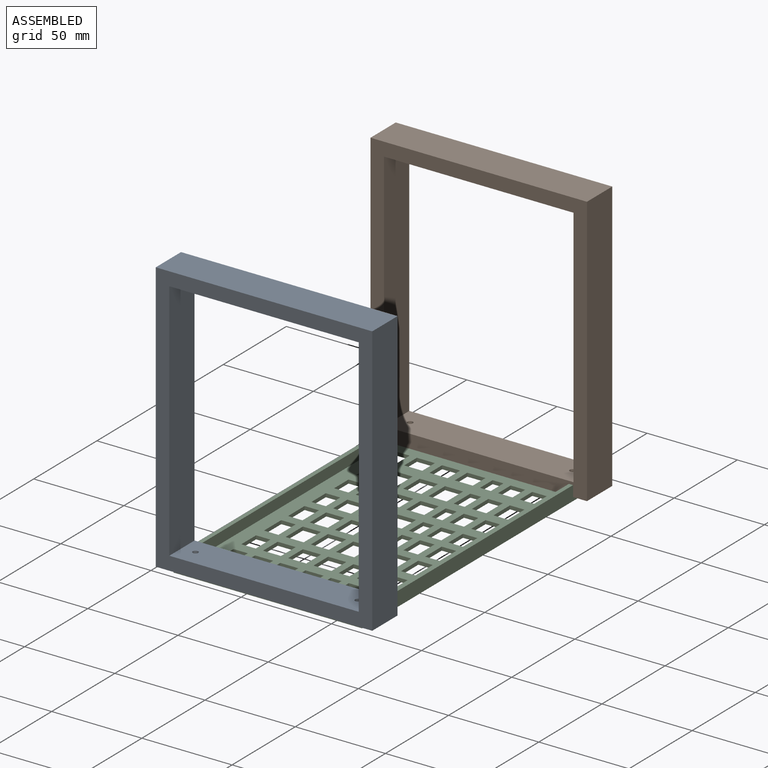
[diagram: assembled view]
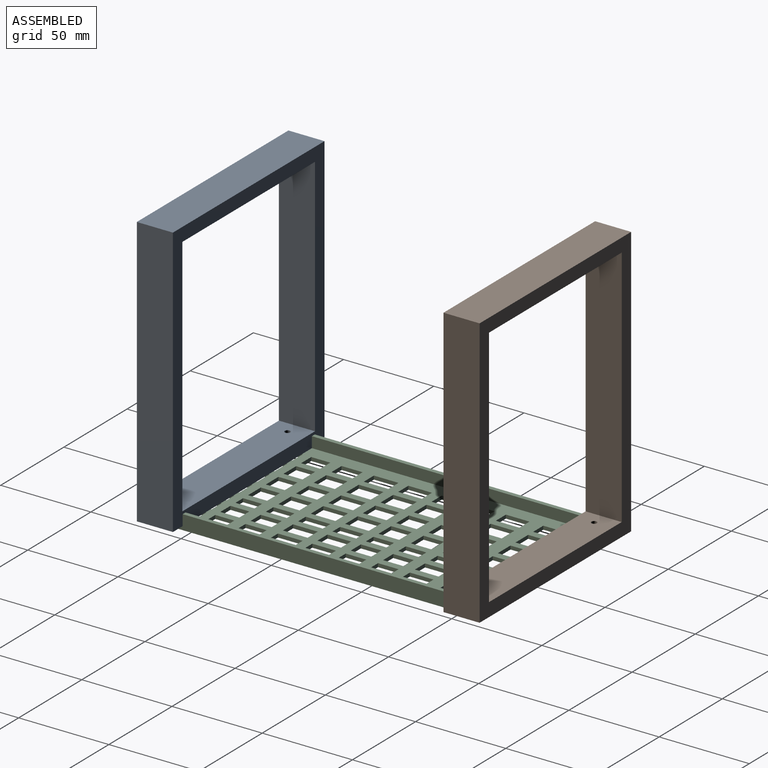
[diagram: assembled view, second angle]
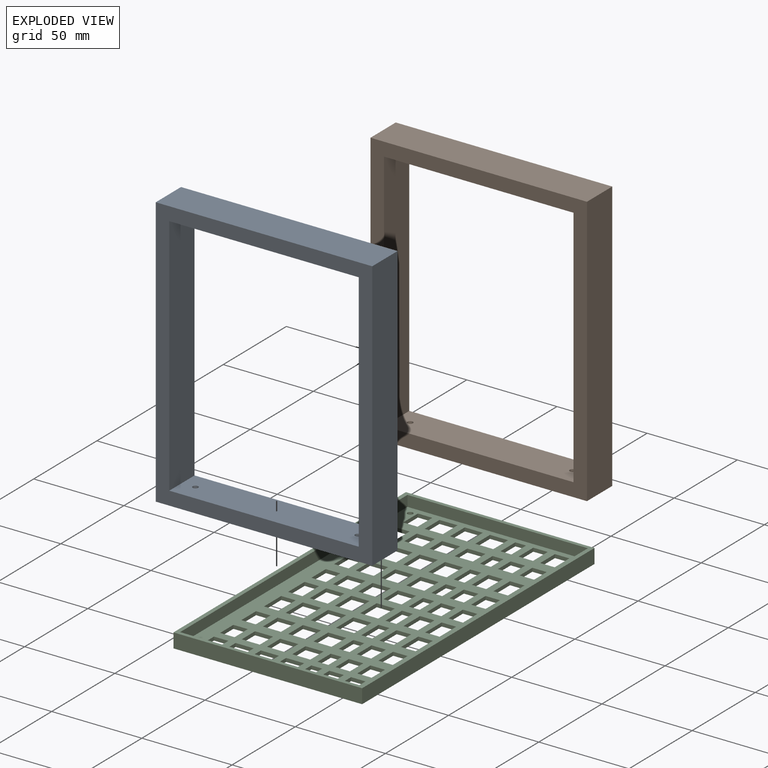
[diagram: exploded view]
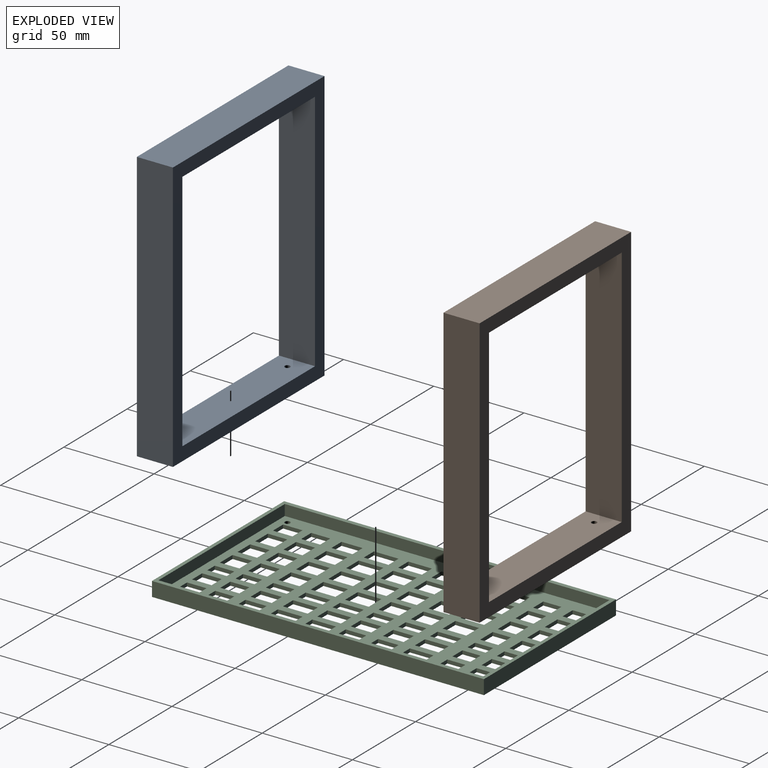
[diagram: exploded view, second angle]
ASSEMBLY  parts=3 mates=2
PART A: 12 faces, bbox 120x150x20 mm
  f0: plane 120x20mm, normal (0,1,0), area 2400mm2, adj f1,f7,f8,f9
  f1: plane 150x20mm, normal (-1,0,0), area 3000mm2, adj f0,f2,f8,f9
  f2: plane 120x20mm, normal (0,-1,0), area 2385.9mm2, adj f1,f7,f8,f9,f10,f11
  f3: plane 135x20mm, normal (1,0,0), area 2700mm2, adj f4,f6,f8,f9
  f4: plane 105x20mm, normal (0,-1,0), area 2100mm2, adj f3,f5,f8,f9
  f5: plane 135x20mm, normal (-1,0,0), area 2700mm2, adj f4,f6,f8,f9
  f6: plane 105x20mm, normal (0,1,0), area 2085.9mm2, adj f3,f5,f8,f9,f10,f11
  f7: plane 150x20mm, normal (1,0,0), area 3000mm2, adj f0,f2,f8,f9
  f8: plane 150x120mm, normal (0,0,1), area 3825mm2, adj f0,f1,f2,f3,f4,f5,f6,f7
  f9: plane 150x120mm, normal (0,0,-1), area 3825mm2, adj f0,f1,f2,f3,f4,f5,f6,f7
  f10: cylinder r=1.5mm len=7.5mm, axis (0,1,0), area 70.7mm2, adj f2,f6
  f11: cylinder r=1.5mm len=7.5mm, axis (0,1,0), area 70.7mm2, adj f2,f6
PART B: same geometry as A
PART C: 308 faces, bbox 184x104.6x8 mm
  f0: plane 100x8mm, normal (-1,0,0), area 668mm2, adj f5,f6,f8,f9,f220,f221,f223,f224
  f1: plane 184x8mm, normal (0,1,0), area 1472mm2, adj f2,f7,f8,f9
  f2: plane 104.6x8mm, normal (-1,0,0), area 836.8mm2, adj f1,f3,f8,f9
  f3: plane 184x8mm, normal (0,-1,0), area 1472mm2, adj f2,f7,f8,f9
  f4: plane 100x8mm, normal (1,0,0), area 600mm2, adj f5,f6,f8,f9,f220,f303
  f5: plane 180x8mm, normal (0,-1,0), area 1440mm2, adj f0,f4,f8,f9
  f6: plane 180x6mm, normal (0,1,0), area 1080mm2, adj f0,f4,f8,f303
  f7: plane 104.6x8mm, normal (1,0,0), area 836.8mm2, adj f1,f3,f8,f9
  f8: plane 184x104.6mm, normal (0,0,1), area 1246.3mm2, adj f0,f1,f2,f3,f4,f5,f6,f7
  f9: plane 184x104.6mm, normal (0,0,-1), area 12174.1mm2, adj f0,f1,f2,f3,f4,f5,f7,f10
  f10: plane 8x2mm, normal (1,0,0), area 16mm2, adj f9,f11,f302,f303
  f11: plane 13.09x2mm, normal (0,-1,0), area 26.2mm2, adj f9,f10,f12,f303
  f12: plane 8x2mm, normal (-1,0,0), area 16mm2, adj f9,f11,f302,f303
  f13: plane 8x2mm, normal (1,0,0), area 16mm2, adj f9,f14,f233,f303
  f14: plane 10x2mm, normal (0,-1,0), area 20mm2, adj f9,f13,f15,f303
  f15: plane 8x2mm, normal (-1,0,0), area 16mm2, adj f9,f14,f233,f303
  f16: plane 8x2mm, normal (1,0,0), area 16mm2, adj f9,f17,f234,f303
  f17: plane 10.53x2mm, normal (0,-1,0), area 21.1mm2, adj f9,f16,f18,f303
  f18: plane 8x2mm, normal (-1,0,0), area 16mm2, adj f9,f17,f234,f303
  f19: plane 8x2mm, normal (1,0,0), area 16mm2, adj f9,f20,f235,f303
  f20: plane 10.82x2mm, normal (0,-1,0), area 21.6mm2, adj f9,f19,f21,f303
  f21: plane 8x2mm, normal (-1,0,0), area 16mm2, adj f9,f20,f235,f303
  f22: plane 8x2mm, normal (1,0,0), area 16mm2, adj f9,f23,f236,f303
  f23: plane 11.39x2mm, normal (0,-1,0), area 22.8mm2, adj f9,f22,f24,f303
  f24: plane 8x2mm, normal (-1,0,0), area 16mm2, adj f9,f23,f236,f303
  f25: plane 8x2mm, normal (1,0,0), area 16mm2, adj f9,f26,f237,f303
  f26: plane 11.39x2mm, normal (0,-1,0), area 22.8mm2, adj f9,f25,f27,f303
  f27: plane 8x2mm, normal (-1,0,0), area 16mm2, adj f9,f26,f237,f303
  f28: plane 8x2mm, normal (1,0,0), area 16mm2, adj f9,f29,f238,f303
  f29: plane 11.67x2mm, normal (0,-1,0), area 23.3mm2, adj f9,f28,f30,f303
  f30: plane 8x2mm, normal (-1,0,0), area 16mm2, adj f9,f29,f238,f303
  f31: plane 8x2mm, normal (1,0,0), area 16mm2, adj f9,f32,f239,f303
  f32: plane 13.09x2mm, normal (0,-1,0), area 26.2mm2, adj f9,f31,f33,f303
  f33: plane 8x2mm, normal (-1,0,0), area 16mm2, adj f9,f32,f239,f303
  f34: plane 8x2mm, normal (1,0,0), area 16mm2, adj f9,f35,f240,f303
  f35: plane 13.66x2mm, normal (0,-1,0), area 27.3mm2, adj f9,f34,f36,f303
  f36: plane 8x2mm, normal (-1,0,0), area 16mm2, adj f9,f35,f240,f303
  f37: plane 8x2mm, normal (1,0,0), area 16mm2, adj f9,f38,f241,f303
  f38: plane 11.67x2mm, normal (0,-1,0), area 23.3mm2, adj f9,f37,f39,f303
  f39: plane 8x2mm, normal (-1,0,0), area 16mm2, adj f9,f38,f241,f303
  f40: plane 10x2mm, normal (1,0,0), area 20mm2, adj f9,f41,f242,f303
  f41: plane 13.09x2mm, normal (0,-1,0), area 26.2mm2, adj f9,f40,f42,f303
  f42: plane 10x2mm, normal (-1,0,0), area 20mm2, adj f9,f41,f242,f303
  f43: plane 10x2mm, normal (1,0,0), area 20mm2, adj f9,f44,f243,f303
  f44: plane 10x2mm, normal (0,-1,0), area 20mm2, adj f9,f43,f45,f303
  f45: plane 10x2mm, normal (-1,0,0), area 20mm2, adj f9,f44,f243,f303
  f46: plane 10x2mm, normal (1,0,0), area 20mm2, adj f9,f47,f244,f303
  f47: plane 10.53x2mm, normal (0,-1,0), area 21.1mm2, adj f9,f46,f48,f303
  f48: plane 10x2mm, normal (-1,0,0), area 20mm2, adj f9,f47,f244,f303
  f49: plane 10x2mm, normal (1,0,0), area 20mm2, adj f9,f50,f245,f303
  f50: plane 10.82x2mm, normal (0,-1,0), area 21.6mm2, adj f9,f49,f51,f303
  f51: plane 10x2mm, normal (-1,0,0), area 20mm2, adj f9,f50,f245,f303
  f52: plane 10x2mm, normal (1,0,0), area 20mm2, adj f9,f53,f246,f303
  f53: plane 11.39x2mm, normal (0,-1,0), area 22.8mm2, adj f9,f52,f54,f303
  f54: plane 10x2mm, normal (-1,0,0), area 20mm2, adj f9,f53,f246,f303
  f55: plane 10x2mm, normal (1,0,0), area 20mm2, adj f9,f56,f247,f303
  f56: plane 11.39x2mm, normal (0,-1,0), area 22.8mm2, adj f9,f55,f57,f303
  f57: plane 10x2mm, normal (-1,0,0), area 20mm2, adj f9,f56,f247,f303
  f58: plane 10x2mm, normal (1,0,0), area 20mm2, adj f9,f59,f248,f303
  f59: plane 11.67x2mm, normal (0,-1,0), area 23.3mm2, adj f9,f58,f60,f303
  f60: plane 10x2mm, normal (-1,0,0), area 20mm2, adj f9,f59,f248,f303
  f61: plane 10x2mm, normal (1,0,0), area 20mm2, adj f9,f62,f249,f303
  f62: plane 13.09x2mm, normal (0,-1,0), area 26.2mm2, adj f9,f61,f63,f303
  f63: plane 10x2mm, normal (-1,0,0), area 20mm2, adj f9,f62,f249,f303
  f64: plane 10x2mm, normal (1,0,0), area 20mm2, adj f9,f65,f250,f303
  f65: plane 13.66x2mm, normal (0,-1,0), area 27.3mm2, adj f9,f64,f66,f303
  f66: plane 10x2mm, normal (-1,0,0), area 20mm2, adj f9,f65,f250,f303
  f67: plane 10x2mm, normal (1,0,0), area 20mm2, adj f9,f68,f251,f303
  f68: plane 11.67x2mm, normal (0,-1,0), area 23.3mm2, adj f9,f67,f69,f303
  f69: plane 10x2mm, normal (-1,0,0), area 20mm2, adj f9,f68,f251,f303
  f70: plane 10x2mm, normal (1,0,0), area 20mm2, adj f9,f71,f252,f303
  f71: plane 13.09x2mm, normal (0,-1,0), area 26.2mm2, adj f9,f70,f72,f303
  f72: plane 10x2mm, normal (-1,0,0), area 20mm2, adj f9,f71,f252,f303
  f73: plane 10x2mm, normal (1,0,0), area 20mm2, adj f9,f74,f253,f303
  f74: plane 10x2mm, normal (0,-1,0), area 20mm2, adj f9,f73,f75,f303
  f75: plane 10x2mm, normal (-1,0,0), area 20mm2, adj f9,f74,f253,f303
  f76: plane 10x2mm, normal (1,0,0), area 20mm2, adj f9,f77,f254,f303
  f77: plane 10.53x2mm, normal (0,-1,0), area 21.1mm2, adj f9,f76,f78,f303
  f78: plane 10x2mm, normal (-1,0,0), area 20mm2, adj f9,f77,f254,f303
  f79: plane 10x2mm, normal (1,0,0), area 20mm2, adj f9,f80,f255,f303
  f80: plane 10.82x2mm, normal (0,-1,0), area 21.6mm2, adj f9,f79,f81,f303
  f81: plane 10x2mm, normal (-1,0,0), area 20mm2, adj f9,f80,f255,f303
  f82: plane 10x2mm, normal (1,0,0), area 20mm2, adj f9,f83,f256,f303
  f83: plane 11.39x2mm, normal (0,-1,0), area 22.8mm2, adj f9,f82,f84,f303
  f84: plane 10x2mm, normal (-1,0,0), area 20mm2, adj f9,f83,f256,f303
  f85: plane 10x2mm, normal (1,0,0), area 20mm2, adj f9,f86,f257,f303
  f86: plane 11.39x2mm, normal (0,-1,0), area 22.8mm2, adj f9,f85,f87,f303
  f87: plane 10x2mm, normal (-1,0,0), area 20mm2, adj f9,f86,f257,f303
  f88: plane 10x2mm, normal (1,0,0), area 20mm2, adj f9,f89,f258,f303
  f89: plane 11.67x2mm, normal (0,-1,0), area 23.3mm2, adj f9,f88,f90,f303
  f90: plane 10x2mm, normal (-1,0,0), area 20mm2, adj f9,f89,f258,f303
  f91: plane 10x2mm, normal (1,0,0), area 20mm2, adj f9,f92,f259,f303
  f92: plane 13.09x2mm, normal (0,-1,0), area 26.2mm2, adj f9,f91,f93,f303
  f93: plane 10x2mm, normal (-1,0,0), area 20mm2, adj f9,f92,f259,f303
  f94: plane 10x2mm, normal (1,0,0), area 20mm2, adj f9,f95,f260,f303
  f95: plane 13.66x2mm, normal (0,-1,0), area 27.3mm2, adj f9,f94,f96,f303
  f96: plane 10x2mm, normal (-1,0,0), area 20mm2, adj f9,f95,f260,f303
  f97: plane 10x2mm, normal (1,0,0), area 20mm2, adj f9,f98,f261,f303
  f98: plane 11.67x2mm, normal (0,-1,0), area 23.3mm2, adj f9,f97,f99,f303
  f99: plane 10x2mm, normal (-1,0,0), area 20mm2, adj f9,f98,f261,f303
  f100: plane 10x2mm, normal (1,0,0), area 20mm2, adj f9,f101,f262,f303
  f101: plane 13.09x2mm, normal (0,-1,0), area 26.2mm2, adj f9,f100,f102,f303
  f102: plane 10x2mm, normal (-1,0,0), area 20mm2, adj f9,f101,f262,f303
  f103: plane 10x2mm, normal (1,0,0), area 20mm2, adj f9,f104,f263,f303
  f104: plane 10x2mm, normal (0,-1,0), area 20mm2, adj f9,f103,f105,f303
  f105: plane 10x2mm, normal (-1,0,0), area 20mm2, adj f9,f104,f263,f303
  f106: plane 10x2mm, normal (1,0,0), area 20mm2, adj f9,f107,f264,f303
  f107: plane 10.53x2mm, normal (0,-1,0), area 21.1mm2, adj f9,f106,f108,f303
  f108: plane 10x2mm, normal (-1,0,0), area 20mm2, adj f9,f107,f264,f303
  f109: plane 10x2mm, normal (1,0,0), area 20mm2, adj f9,f110,f265,f303
  f110: plane 10.82x2mm, normal (0,-1,0), area 21.6mm2, adj f9,f109,f111,f303
  f111: plane 10x2mm, normal (-1,0,0), area 20mm2, adj f9,f110,f265,f303
  f112: plane 10x2mm, normal (1,0,0), area 20mm2, adj f9,f113,f266,f303
  f113: plane 11.39x2mm, normal (0,-1,0), area 22.8mm2, adj f9,f112,f114,f303
  f114: plane 10x2mm, normal (-1,0,0), area 20mm2, adj f9,f113,f266,f303
  f115: plane 10x2mm, normal (1,0,0), area 20mm2, adj f9,f116,f267,f303
  f116: plane 11.39x2mm, normal (0,-1,0), area 22.8mm2, adj f9,f115,f117,f303
  f117: plane 10x2mm, normal (-1,0,0), area 20mm2, adj f9,f116,f267,f303
  f118: plane 10x2mm, normal (1,0,0), area 20mm2, adj f9,f119,f268,f303
  f119: plane 11.67x2mm, normal (0,-1,0), area 23.3mm2, adj f9,f118,f120,f303
  f120: plane 10x2mm, normal (-1,0,0), area 20mm2, adj f9,f119,f268,f303
  f121: plane 10x2mm, normal (1,0,0), area 20mm2, adj f9,f122,f269,f303
  f122: plane 13.09x2mm, normal (0,-1,0), area 26.2mm2, adj f9,f121,f123,f303
  f123: plane 10x2mm, normal (-1,0,0), area 20mm2, adj f9,f122,f269,f303
  f124: plane 10x2mm, normal (1,0,0), area 20mm2, adj f9,f125,f270,f303
  f125: plane 13.66x2mm, normal (0,-1,0), area 27.3mm2, adj f9,f124,f126,f303
  f126: plane 10x2mm, normal (-1,0,0), area 20mm2, adj f9,f125,f270,f303
  f127: plane 10x2mm, normal (1,0,0), area 20mm2, adj f9,f128,f271,f303
  f128: plane 11.67x2mm, normal (0,-1,0), area 23.3mm2, adj f9,f127,f129,f303
  f129: plane 10x2mm, normal (-1,0,0), area 20mm2, adj f9,f128,f271,f303
  f130: plane 6x2mm, normal (1,0,0), area 12mm2, adj f9,f131,f272,f303
  f131: plane 13.09x2mm, normal (0,-1,0), area 26.2mm2, adj f9,f130,f132,f303
  f132: plane 6x2mm, normal (-1,0,0), area 12mm2, adj f9,f131,f272,f303
  f133: plane 6x2mm, normal (1,0,0), area 12mm2, adj f9,f134,f273,f303
  f134: plane 10x2mm, normal (0,-1,0), area 20mm2, adj f9,f133,f135,f303
  f135: plane 6x2mm, normal (-1,0,0), area 12mm2, adj f9,f134,f273,f303
  f136: plane 6x2mm, normal (1,0,0), area 12mm2, adj f9,f137,f274,f303
  f137: plane 10.53x2mm, normal (0,-1,0), area 21.1mm2, adj f9,f136,f138,f303
  f138: plane 6x2mm, normal (-1,0,0), area 12mm2, adj f9,f137,f274,f303
  f139: plane 6x2mm, normal (1,0,0), area 12mm2, adj f9,f140,f275,f303
  f140: plane 10.82x2mm, normal (0,-1,0), area 21.6mm2, adj f9,f139,f141,f303
  f141: plane 6x2mm, normal (-1,0,0), area 12mm2, adj f9,f140,f275,f303
  f142: plane 6x2mm, normal (1,0,0), area 12mm2, adj f9,f143,f276,f303
  f143: plane 11.39x2mm, normal (0,-1,0), area 22.8mm2, adj f9,f142,f144,f303
  f144: plane 6x2mm, normal (-1,0,0), area 12mm2, adj f9,f143,f276,f303
  f145: plane 6x2mm, normal (1,0,0), area 12mm2, adj f9,f146,f277,f303
  f146: plane 11.39x2mm, normal (0,-1,0), area 22.8mm2, adj f9,f145,f147,f303
  f147: plane 6x2mm, normal (-1,0,0), area 12mm2, adj f9,f146,f277,f303
  f148: plane 6x2mm, normal (1,0,0), area 12mm2, adj f9,f149,f278,f303
  f149: plane 11.67x2mm, normal (0,-1,0), area 23.3mm2, adj f9,f148,f150,f303
  f150: plane 6x2mm, normal (-1,0,0), area 12mm2, adj f9,f149,f278,f303
  f151: plane 6x2mm, normal (1,0,0), area 12mm2, adj f9,f152,f279,f303
  f152: plane 13.09x2mm, normal (0,-1,0), area 26.2mm2, adj f9,f151,f153,f303
  f153: plane 6x2mm, normal (-1,0,0), area 12mm2, adj f9,f152,f279,f303
  f154: plane 6x2mm, normal (1,0,0), area 12mm2, adj f9,f155,f280,f303
  f155: plane 13.66x2mm, normal (0,-1,0), area 27.3mm2, adj f9,f154,f156,f303
  f156: plane 6x2mm, normal (-1,0,0), area 12mm2, adj f9,f155,f280,f303
  f157: plane 6x2mm, normal (1,0,0), area 12mm2, adj f9,f158,f281,f303
  f158: plane 11.67x2mm, normal (0,-1,0), area 23.3mm2, adj f9,f157,f159,f303
  f159: plane 6x2mm, normal (-1,0,0), area 12mm2, adj f9,f158,f281,f303
  f160: plane 8x2mm, normal (1,0,0), area 16mm2, adj f9,f161,f282,f303
  f161: plane 13.09x2mm, normal (0,-1,0), area 26.2mm2, adj f9,f160,f162,f303
  f162: plane 8x2mm, normal (-1,0,0), area 16mm2, adj f9,f161,f282,f303
  f163: plane 8x2mm, normal (1,0,0), area 16mm2, adj f9,f164,f283,f303
  f164: plane 10x2mm, normal (0,-1,0), area 20mm2, adj f9,f163,f165,f303
  f165: plane 8x2mm, normal (-1,0,0), area 16mm2, adj f9,f164,f283,f303
  f166: plane 8x2mm, normal (1,0,0), area 16mm2, adj f9,f167,f284,f303
  f167: plane 10.53x2mm, normal (0,-1,0), area 21.1mm2, adj f9,f166,f168,f303
  f168: plane 8x2mm, normal (-1,0,0), area 16mm2, adj f9,f167,f284,f303
  f169: plane 8x2mm, normal (1,0,0), area 16mm2, adj f9,f170,f285,f303
  f170: plane 10.82x2mm, normal (0,-1,0), area 21.6mm2, adj f9,f169,f171,f303
  f171: plane 8x2mm, normal (-1,0,0), area 16mm2, adj f9,f170,f285,f303
  f172: plane 8x2mm, normal (1,0,0), area 16mm2, adj f9,f173,f286,f303
  f173: plane 11.39x2mm, normal (0,-1,0), area 22.8mm2, adj f9,f172,f174,f303
  f174: plane 8x2mm, normal (-1,0,0), area 16mm2, adj f9,f173,f286,f303
  f175: plane 8x2mm, normal (1,0,0), area 16mm2, adj f9,f176,f287,f303
  f176: plane 11.39x2mm, normal (0,-1,0), area 22.8mm2, adj f9,f175,f177,f303
  f177: plane 8x2mm, normal (-1,0,0), area 16mm2, adj f9,f176,f287,f303
  f178: plane 8x2mm, normal (1,0,0), area 16mm2, adj f9,f179,f288,f303
  f179: plane 11.67x2mm, normal (0,-1,0), area 23.3mm2, adj f9,f178,f180,f303
  f180: plane 8x2mm, normal (-1,0,0), area 16mm2, adj f9,f179,f288,f303
  f181: plane 8x2mm, normal (1,0,0), area 16mm2, adj f9,f182,f289,f303
  f182: plane 13.09x2mm, normal (0,-1,0), area 26.2mm2, adj f9,f181,f183,f303
  f183: plane 8x2mm, normal (-1,0,0), area 16mm2, adj f9,f182,f289,f303
  f184: plane 8x2mm, normal (1,0,0), area 16mm2, adj f9,f185,f290,f303
  f185: plane 13.66x2mm, normal (0,-1,0), area 27.3mm2, adj f9,f184,f186,f303
  f186: plane 8x2mm, normal (-1,0,0), area 16mm2, adj f9,f185,f290,f303
  f187: plane 8x2mm, normal (1,0,0), area 16mm2, adj f9,f188,f291,f303
  f188: plane 11.67x2mm, normal (0,-1,0), area 23.3mm2, adj f9,f187,f189,f303
  f189: plane 8x2mm, normal (-1,0,0), area 16mm2, adj f9,f188,f291,f303
  f190: plane 8x2mm, normal (1,0,0), area 16mm2, adj f9,f191,f292,f303
  f191: plane 13.09x2mm, normal (0,-1,0), area 26.2mm2, adj f9,f190,f192,f303
  f192: plane 8x2mm, normal (-1,0,0), area 16mm2, adj f9,f191,f292,f303
  f193: plane 8x2mm, normal (1,0,0), area 16mm2, adj f9,f194,f293,f303
  f194: plane 10x2mm, normal (0,-1,0), area 20mm2, adj f9,f193,f195,f303
  f195: plane 8x2mm, normal (-1,0,0), area 16mm2, adj f9,f194,f293,f303
  f196: plane 8x2mm, normal (1,0,0), area 16mm2, adj f9,f197,f294,f303
  f197: plane 10.53x2mm, normal (0,-1,0), area 21.1mm2, adj f9,f196,f198,f303
  f198: plane 8x2mm, normal (-1,0,0), area 16mm2, adj f9,f197,f294,f303
  f199: plane 8x2mm, normal (1,0,0), area 16mm2, adj f9,f200,f295,f303
  f200: plane 10.82x2mm, normal (0,-1,0), area 21.6mm2, adj f9,f199,f201,f303
  f201: plane 8x2mm, normal (-1,0,0), area 16mm2, adj f9,f200,f295,f303
  f202: plane 8x2mm, normal (1,0,0), area 16mm2, adj f9,f203,f296,f303
  f203: plane 11.39x2mm, normal (0,-1,0), area 22.8mm2, adj f9,f202,f204,f303
  f204: plane 8x2mm, normal (-1,0,0), area 16mm2, adj f9,f203,f296,f303
  f205: plane 8x2mm, normal (1,0,0), area 16mm2, adj f9,f206,f297,f303
  f206: plane 11.39x2mm, normal (0,-1,0), area 22.8mm2, adj f9,f205,f207,f303
  f207: plane 8x2mm, normal (-1,0,0), area 16mm2, adj f9,f206,f297,f303
  f208: plane 8x2mm, normal (1,0,0), area 16mm2, adj f9,f209,f298,f303
  f209: plane 11.67x2mm, normal (0,-1,0), area 23.3mm2, adj f9,f208,f210,f303
  f210: plane 8x2mm, normal (-1,0,0), area 16mm2, adj f9,f209,f298,f303
  f211: plane 8x2mm, normal (1,0,0), area 16mm2, adj f9,f212,f299,f303
  f212: plane 11.67x2mm, normal (0,-1,0), area 23.3mm2, adj f9,f211,f213,f303
  f213: plane 8x2mm, normal (-1,0,0), area 16mm2, adj f9,f212,f299,f303
  f214: plane 8x2mm, normal (1,0,0), area 16mm2, adj f9,f215,f300,f303
  f215: plane 13.09x2mm, normal (0,-1,0), area 26.2mm2, adj f9,f214,f216,f303
  f216: plane 8x2mm, normal (-1,0,0), area 16mm2, adj f9,f215,f300,f303
  f217: plane 8x2mm, normal (1,0,0), area 16mm2, adj f9,f218,f301,f303
  f218: plane 13.66x2mm, normal (0,-1,0), area 27.3mm2, adj f9,f217,f219,f303
  f219: plane 8x2mm, normal (-1,0,0), area 16mm2, adj f9,f218,f301,f303
  f220: plane 180x2mm, normal (0,1,0), area 360mm2, adj f0,f4,f9,f303
  f221: plane 2x0.05mm, normal (0,1,0), area 0.1mm2, adj f0,f9,f222,f303
  f222: plane 10x2mm, normal (1,0,0), area 20mm2, adj f9,f221,f223,f303
  f223: plane 2x0.05mm, normal (0,-1,0), area 0.1mm2, adj f0,f9,f222,f303
  f224: plane 2x0.05mm, normal (0,1,0), area 0.1mm2, adj f0,f9,f225,f303
  f225: plane 10x2mm, normal (1,0,0), area 20mm2, adj f9,f224,f226,f303
  f226: plane 2x0.05mm, normal (0,-1,0), area 0.1mm2, adj f0,f9,f225,f303
  f227: plane 2x0.05mm, normal (0,1,0), area 0.1mm2, adj f0,f9,f228,f303
  f228: plane 6x2mm, normal (1,0,0), area 12mm2, adj f9,f227,f229,f303
  f229: plane 2x0.05mm, normal (0,-1,0), area 0.1mm2, adj f0,f9,f228,f303
  f230: plane 2x0.05mm, normal (0,1,0), area 0.1mm2, adj f0,f9,f231,f303
  f231: plane 8x2mm, normal (1,0,0), area 16mm2, adj f9,f230,f232,f303
  f232: plane 2x0.05mm, normal (0,-1,0), area 0.1mm2, adj f0,f9,f231,f303
  f233: plane 10x2mm, normal (0,1,0), area 20mm2, adj f9,f13,f15,f303
  f234: plane 10.53x2mm, normal (0,1,0), area 21.1mm2, adj f9,f16,f18,f303
  f235: plane 10.82x2mm, normal (0,1,0), area 21.6mm2, adj f9,f19,f21,f303
  f236: plane 11.39x2mm, normal (0,1,0), area 22.8mm2, adj f9,f22,f24,f303
  f237: plane 11.39x2mm, normal (0,1,0), area 22.8mm2, adj f9,f25,f27,f303
  f238: plane 11.67x2mm, normal (0,1,0), area 23.3mm2, adj f9,f28,f30,f303
  f239: plane 13.09x2mm, normal (0,1,0), area 26.2mm2, adj f9,f31,f33,f303
  f240: plane 13.66x2mm, normal (0,1,0), area 27.3mm2, adj f9,f34,f36,f303
  f241: plane 11.67x2mm, normal (0,1,0), area 23.3mm2, adj f9,f37,f39,f303
  f242: plane 13.09x2mm, normal (0,1,0), area 26.2mm2, adj f9,f40,f42,f303
  f243: plane 10x2mm, normal (0,1,0), area 20mm2, adj f9,f43,f45,f303
  f244: plane 10.53x2mm, normal (0,1,0), area 21.1mm2, adj f9,f46,f48,f303
  f245: plane 10.82x2mm, normal (0,1,0), area 21.6mm2, adj f9,f49,f51,f303
  f246: plane 11.39x2mm, normal (0,1,0), area 22.8mm2, adj f9,f52,f54,f303
  f247: plane 11.39x2mm, normal (0,1,0), area 22.8mm2, adj f9,f55,f57,f303
  f248: plane 11.67x2mm, normal (0,1,0), area 23.3mm2, adj f9,f58,f60,f303
  f249: plane 13.09x2mm, normal (0,1,0), area 26.2mm2, adj f9,f61,f63,f303
  f250: plane 13.66x2mm, normal (0,1,0), area 27.3mm2, adj f9,f64,f66,f303
  f251: plane 11.67x2mm, normal (0,1,0), area 23.3mm2, adj f9,f67,f69,f303
  f252: plane 13.09x2mm, normal (0,1,0), area 26.2mm2, adj f9,f70,f72,f303
  f253: plane 10x2mm, normal (0,1,0), area 20mm2, adj f9,f73,f75,f303
  f254: plane 10.53x2mm, normal (0,1,0), area 21.1mm2, adj f9,f76,f78,f303
  f255: plane 10.82x2mm, normal (0,1,0), area 21.6mm2, adj f9,f79,f81,f303
  f256: plane 11.39x2mm, normal (0,1,0), area 22.8mm2, adj f9,f82,f84,f303
  f257: plane 11.39x2mm, normal (0,1,0), area 22.8mm2, adj f9,f85,f87,f303
  f258: plane 11.67x2mm, normal (0,1,0), area 23.3mm2, adj f9,f88,f90,f303
  f259: plane 13.09x2mm, normal (0,1,0), area 26.2mm2, adj f9,f91,f93,f303
  f260: plane 13.66x2mm, normal (0,1,0), area 27.3mm2, adj f9,f94,f96,f303
  f261: plane 11.67x2mm, normal (0,1,0), area 23.3mm2, adj f9,f97,f99,f303
  f262: plane 13.09x2mm, normal (0,1,0), area 26.2mm2, adj f9,f100,f102,f303
  f263: plane 10x2mm, normal (0,1,0), area 20mm2, adj f9,f103,f105,f303
  f264: plane 10.53x2mm, normal (0,1,0), area 21.1mm2, adj f9,f106,f108,f303
  f265: plane 10.82x2mm, normal (0,1,0), area 21.6mm2, adj f9,f109,f111,f303
  f266: plane 11.39x2mm, normal (0,1,0), area 22.8mm2, adj f9,f112,f114,f303
  f267: plane 11.39x2mm, normal (0,1,0), area 22.8mm2, adj f9,f115,f117,f303
  f268: plane 11.67x2mm, normal (0,1,0), area 23.3mm2, adj f9,f118,f120,f303
  f269: plane 13.09x2mm, normal (0,1,0), area 26.2mm2, adj f9,f121,f123,f303
  f270: plane 13.66x2mm, normal (0,1,0), area 27.3mm2, adj f9,f124,f126,f303
  f271: plane 11.67x2mm, normal (0,1,0), area 23.3mm2, adj f9,f127,f129,f303
  f272: plane 13.09x2mm, normal (0,1,0), area 26.2mm2, adj f9,f130,f132,f303
  f273: plane 10x2mm, normal (0,1,0), area 20mm2, adj f9,f133,f135,f303
  f274: plane 10.53x2mm, normal (0,1,0), area 21.1mm2, adj f9,f136,f138,f303
  f275: plane 10.82x2mm, normal (0,1,0), area 21.6mm2, adj f9,f139,f141,f303
  f276: plane 11.39x2mm, normal (0,1,0), area 22.8mm2, adj f9,f142,f144,f303
  f277: plane 11.39x2mm, normal (0,1,0), area 22.8mm2, adj f9,f145,f147,f303
  f278: plane 11.67x2mm, normal (0,1,0), area 23.3mm2, adj f9,f148,f150,f303
  f279: plane 13.09x2mm, normal (0,1,0), area 26.2mm2, adj f9,f151,f153,f303
  f280: plane 13.66x2mm, normal (0,1,0), area 27.3mm2, adj f9,f154,f156,f303
  f281: plane 11.67x2mm, normal (0,1,0), area 23.3mm2, adj f9,f157,f159,f303
  f282: plane 13.09x2mm, normal (0,1,0), area 26.2mm2, adj f9,f160,f162,f303
  f283: plane 10x2mm, normal (0,1,0), area 20mm2, adj f9,f163,f165,f303
  f284: plane 10.53x2mm, normal (0,1,0), area 21.1mm2, adj f9,f166,f168,f303
  f285: plane 10.82x2mm, normal (0,1,0), area 21.6mm2, adj f9,f169,f171,f303
  f286: plane 11.39x2mm, normal (0,1,0), area 22.8mm2, adj f9,f172,f174,f303
  f287: plane 11.39x2mm, normal (0,1,0), area 22.8mm2, adj f9,f175,f177,f303
  f288: plane 11.67x2mm, normal (0,1,0), area 23.3mm2, adj f9,f178,f180,f303
  f289: plane 13.09x2mm, normal (0,1,0), area 26.2mm2, adj f9,f181,f183,f303
  f290: plane 13.66x2mm, normal (0,1,0), area 27.3mm2, adj f9,f184,f186,f303
  f291: plane 11.67x2mm, normal (0,1,0), area 23.3mm2, adj f9,f187,f189,f303
  f292: plane 13.09x2mm, normal (0,1,0), area 26.2mm2, adj f9,f190,f192,f303
  f293: plane 10x2mm, normal (0,1,0), area 20mm2, adj f9,f193,f195,f303
  f294: plane 10.53x2mm, normal (0,1,0), area 21.1mm2, adj f9,f196,f198,f303
  f295: plane 10.82x2mm, normal (0,1,0), area 21.6mm2, adj f9,f199,f201,f303
  f296: plane 11.39x2mm, normal (0,1,0), area 22.8mm2, adj f9,f202,f204,f303
  f297: plane 11.39x2mm, normal (0,1,0), area 22.8mm2, adj f9,f205,f207,f303
  f298: plane 11.67x2mm, normal (0,1,0), area 23.3mm2, adj f9,f208,f210,f303
  f299: plane 11.67x2mm, normal (0,1,0), area 23.3mm2, adj f9,f211,f213,f303
  f300: plane 13.09x2mm, normal (0,1,0), area 26.2mm2, adj f9,f214,f216,f303
  f301: plane 13.66x2mm, normal (0,1,0), area 27.3mm2, adj f9,f217,f219,f303
  f302: plane 13.09x2mm, normal (0,1,0), area 26.2mm2, adj f9,f10,f12,f303
  f303: plane 180x99.98mm, normal (0,0,1), area 10927.8mm2, adj f0,f4,f6,f10,f11,f12,f13,f14
  f304: cylinder r=1.5mm len=3mm, axis (0,0,1), area 18.8mm2, adj f9,f303
  f305: cylinder r=1.5mm len=3mm, axis (0,0,1), area 18.8mm2, adj f9,f303
  f306: cylinder r=1.5mm len=3mm, axis (0,0,1), area 18.8mm2, adj f9,f303
  f307: cylinder r=1.5mm len=3mm, axis (0,0,1), area 18.8mm2, adj f9,f303
PLACE A rot(axis=(1,0,0),90deg) t=(-86.28,-102.89,-5.76)mm
PLACE B rot(axis=(1,0,0),90deg) t=(-86.28,67.11,-5.76)mm
PLACE C rot(axis=(0,0,-1),90deg) t=(-86.28,-27.89,-82.76)mm
MATE fastened C.f307 <-> A.f10  axis (0,0,1) through (-131.28,-112.89,-80.76)mm
MATE fastened C.f305 <-> B.f10  axis (0,0,1) through (-131.28,57.11,-80.76)mm
